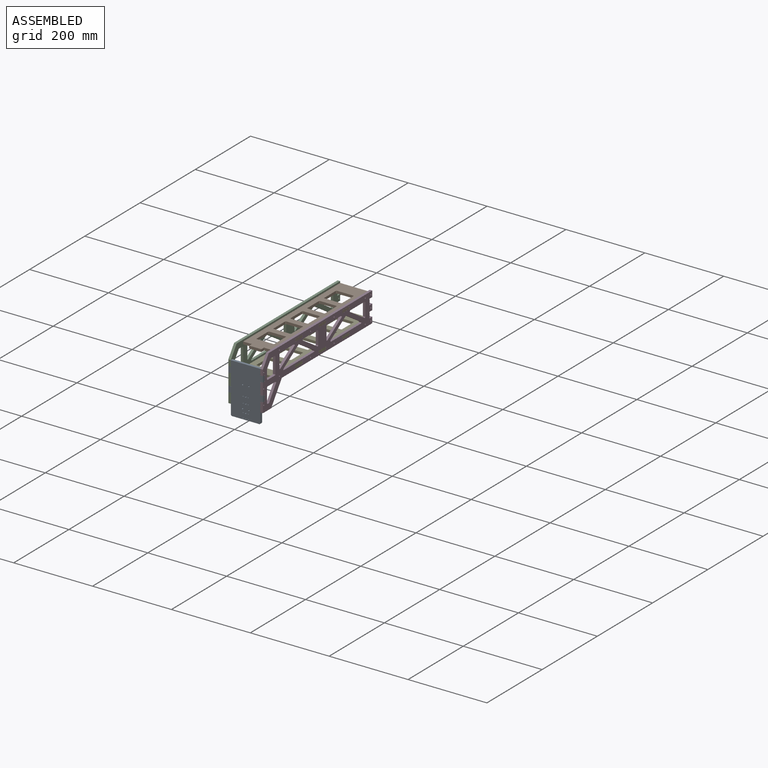
[diagram: assembled view]
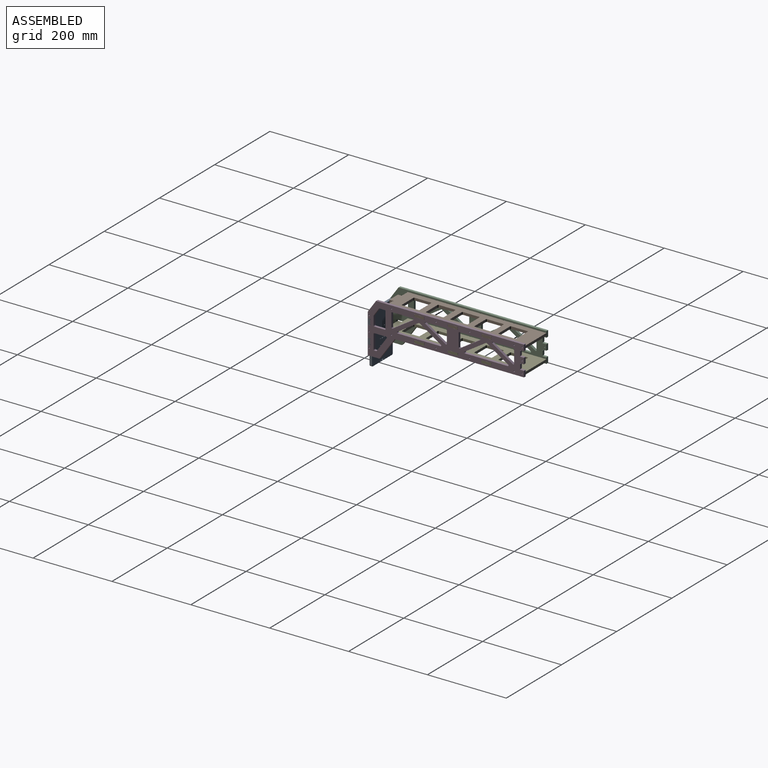
[diagram: assembled view, second angle]
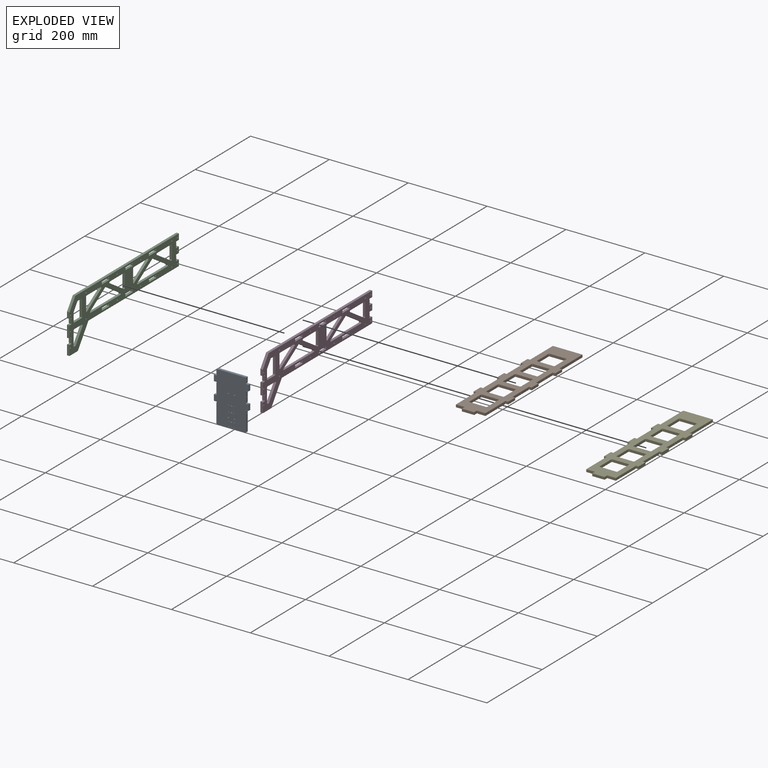
[diagram: exploded view]
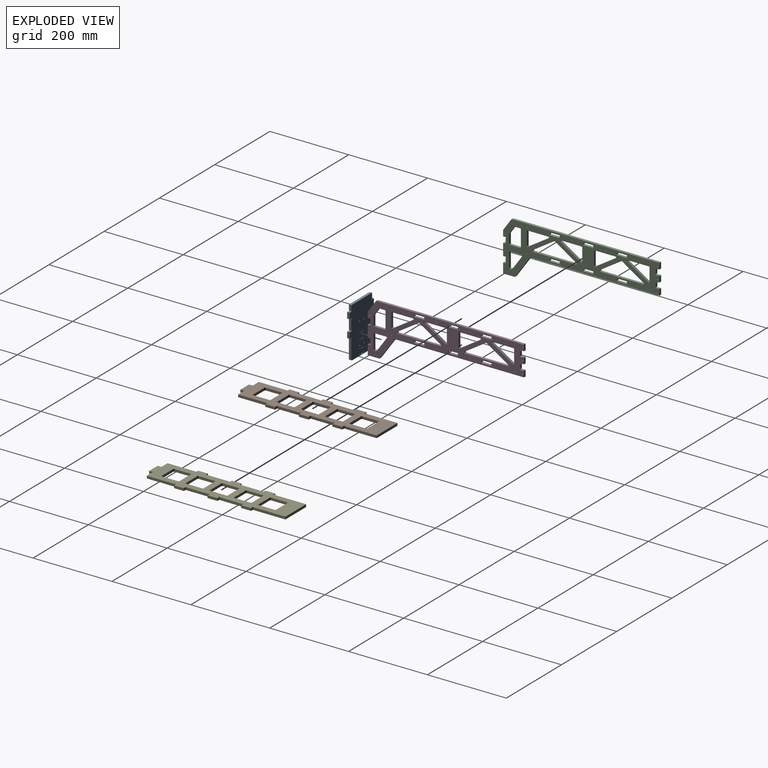
[diagram: exploded view, second angle]
ASSEMBLY  parts=5 mates=4
PART A: 70 faces, bbox 87.7x6.4x127.4 mm
  f0: cylinder r=1mm len=4.35mm, axis (0,-1,0), area 27.3mm2, adj f7,f68
  f1: plane 14.9x6.35mm, normal (1,0,0), area 94.6mm2, adj f7,f8,f18,f21
  f2: plane 14.9x6.35mm, normal (-1,0,0), area 94.6mm2, adj f7,f8,f10,f11
  f3: plane 14.9x6.35mm, normal (-1,0,0), area 94.6mm2, adj f7,f8,f12,f14
  f4: plane 71x6.35mm, normal (0,0,-1), area 450.9mm2, adj f7,f8,f60,f61
  f5: plane 14.9x6.35mm, normal (1,0,0), area 94.6mm2, adj f7,f8,f16,f19
  f6: plane 75x6.35mm, normal (0,0,1), area 476.3mm2, adj f7,f8,f9,f22
  f7: plane 127.4x87.7mm, normal (0,-1,0), area 9826.5mm2, adj f0,f1,f2,f3,f4,f5,f6,f9
  f8: plane 127.4x87.7mm, normal (0,1,0), area 9810mm2, adj f1,f2,f3,f4,f5,f6,f9,f10
  f9: plane 13.05x6.35mm, normal (-1,0,0), area 78mm2, adj f6,f7,f8,f23,f34
  f10: plane 6.35x6.35mm, normal (0,0,1), area 40.3mm2, adj f2,f7,f8,f23
  f11: plane 6.35x6.35mm, normal (0,0,-1), area 40.3mm2, adj f2,f7,f8,f24
  f12: plane 6.35x6.35mm, normal (0,0,1), area 40.3mm2, adj f3,f7,f8,f25
  f13: plane 26.1x6.35mm, normal (-1,0,0), area 160.8mm2, adj f7,f8,f24,f25,f36
  f14: plane 6.35x6.35mm, normal (0,0,-1), area 40.3mm2, adj f3,f7,f8,f26
  f15: plane 48.45x6.35mm, normal (-1,0,0), area 302.7mm2, adj f7,f8,f26,f32,f61
  f16: plane 6.35x6.35mm, normal (0,0,-1), area 40.3mm2, adj f5,f7,f8,f27
  f17: plane 48.45x6.35mm, normal (1,0,0), area 302.7mm2, adj f7,f8,f27,f38,f60
  f18: plane 6.35x6.35mm, normal (0,0,-1), area 40.3mm2, adj f1,f7,f8,f29
  f19: plane 6.35x6.35mm, normal (0,0,1), area 40.3mm2, adj f5,f7,f8,f28
  f20: plane 26.1x6.35mm, normal (1,0,0), area 160.8mm2, adj f7,f8,f28,f29,f40
  f21: plane 6.35x6.35mm, normal (0,0,1), area 40.3mm2, adj f1,f7,f8,f30
  f22: plane 13.05x6.35mm, normal (1,0,0), area 78mm2, adj f6,f7,f8,f30,f42
  f23: cylinder r=1mm len=6.35mm, axis (0,-1,0), area 19.9mm2, adj f7,f8,f9,f10
  f24: cylinder r=1mm len=6.35mm, axis (0,-1,0), area 19.9mm2, adj f7,f8,f11,f13
  f25: cylinder r=1mm len=6.35mm, axis (0,-1,0), area 19.9mm2, adj f7,f8,f12,f13
  f26: cylinder r=1mm len=6.35mm, axis (0,-1,0), area 19.9mm2, adj f7,f8,f14,f15
  f27: cylinder r=1mm len=6.35mm, axis (0,-1,0), area 19.9mm2, adj f7,f8,f16,f17
  f28: cylinder r=1mm len=6.35mm, axis (0,-1,0), area 19.9mm2, adj f7,f8,f19,f20
  f29: cylinder r=1mm len=6.35mm, axis (0,-1,0), area 19.9mm2, adj f7,f8,f18,f20
  f30: cylinder r=1mm len=6.35mm, axis (0,-1,0), area 19.9mm2, adj f7,f8,f21,f22
  f31: cone r=1.25mm half-angle=59deg, axis (-1,0,0), area 5.7mm2, adj f32
  f32: cylinder r=1.25mm len=8.5mm, axis (-1,0,0), area 66.8mm2, adj f15,f31
  f33: cone r=1.25mm half-angle=59deg, axis (-1,0,0), area 5.7mm2, adj f34
  f34: cylinder r=1.25mm len=8.5mm, axis (-1,0,0), area 66.8mm2, adj f9,f33
  f35: cone r=1.25mm half-angle=59deg, axis (-1,0,0), area 5.7mm2, adj f36
  f36: cylinder r=1.25mm len=8.5mm, axis (-1,0,0), area 66.8mm2, adj f13,f35
  f37: cone r=1.25mm half-angle=59deg, axis (1,0,0), area 5.7mm2, adj f38
  f38: cylinder r=1.25mm len=8.5mm, axis (1,0,0), area 66.8mm2, adj f17,f37
  f39: cone r=1.25mm half-angle=59deg, axis (1,0,0), area 5.7mm2, adj f40
  f40: cylinder r=1.25mm len=8.5mm, axis (1,0,0), area 66.8mm2, adj f20,f39
  f41: cone r=1.25mm half-angle=59deg, axis (1,0,0), area 5.7mm2, adj f42
  f42: cylinder r=1.25mm len=8.5mm, axis (1,0,0), area 66.8mm2, adj f22,f41
  f43: cylinder r=1.05mm len=6.35mm, axis (0,-1,0), area 41.9mm2, adj f7,f8
  f44: cylinder r=1.05mm len=6.35mm, axis (0,-1,0), area 41.9mm2, adj f7,f8
  f45: cylinder r=1.05mm len=6.35mm, axis (0,-1,0), area 41.9mm2, adj f7,f8
  f46: cylinder r=1.05mm len=6.35mm, axis (0,-1,0), area 41.9mm2, adj f7,f8
  f47: cylinder r=1.05mm len=6.35mm, axis (0,-1,0), area 41.9mm2, adj f7,f8
  f48: cylinder r=1.05mm len=6.35mm, axis (0,-1,0), area 41.9mm2, adj f7,f8
  f49: cylinder r=1.05mm len=6.35mm, axis (0,-1,0), area 41.9mm2, adj f7,f8
  f50: cylinder r=1.05mm len=6.35mm, axis (0,-1,0), area 41.9mm2, adj f7,f8
  f51: cylinder r=1.65mm len=6.35mm, axis (0,-1,0), area 65.8mm2, adj f7,f8
  f52: cylinder r=0.47mm len=6.35mm, axis (0,-1,0), area 19mm2, adj f7,f8
  f53: cylinder r=0.47mm len=6.35mm, axis (0,-1,0), area 19mm2, adj f7,f8
  f54: cylinder r=0.47mm len=6.35mm, axis (0,-1,0), area 19mm2, adj f7,f8
  f55: cylinder r=0.47mm len=6.35mm, axis (0,-1,0), area 19mm2, adj f7,f8
  f56: cylinder r=0.47mm len=6.35mm, axis (0,-1,0), area 19mm2, adj f7,f8
  f57: cylinder r=0.47mm len=6.35mm, axis (0,-1,0), area 19mm2, adj f7,f8
  f58: cylinder r=0.47mm len=6.35mm, axis (0,-1,0), area 19mm2, adj f7,f8
  f59: cylinder r=0.47mm len=6.35mm, axis (0,-1,0), area 19mm2, adj f7,f8
  f60: plane 6.35x2mm, normal (0.71,0,-0.71), area 18mm2, adj f4,f7,f8,f17
  f61: plane 6.35x2mm, normal (-0.71,0,-0.71), area 18mm2, adj f4,f7,f8,f15
  f62: cylinder r=1.55mm len=6.35mm, axis (0,-1,0), area 61.8mm2, adj f7,f8
  f63: cylinder r=1.55mm len=6.35mm, axis (0,-1,0), area 61.8mm2, adj f7,f8
  f64: cylinder r=1.55mm len=6.35mm, axis (0,-1,0), area 61.8mm2, adj f7,f8
  f65: cylinder r=1.55mm len=6.35mm, axis (0,-1,0), area 61.8mm2, adj f7,f8
  f66: cylinder r=1.55mm len=6.35mm, axis (0,-1,0), area 61.8mm2, adj f7,f8
  f67: cylinder r=1.55mm len=6.35mm, axis (0,-1,0), area 61.8mm2, adj f7,f8
  f68: plane 5x5mm, normal (0,1,0), area 16.5mm2, adj f0,f69
  f69: cylinder r=2.5mm len=5mm, axis (0,1,0), area 31.4mm2, adj f8,f68
PART B: 104 faces, bbox 361x6.4x87.7 mm
  f0: plane 31x6.35mm, normal (-1,0,0), area 196.8mm2, adj f28,f29,f71,f72
  f1: plane 71.23x6.35mm, normal (0,0,-1), area 447.4mm2, adj f28,f29,f73,f85,f93
  f2: plane 6.35x6.35mm, normal (-1,0,0), area 40.3mm2, adj f3,f28,f29,f85
  f3: plane 25x6.35mm, normal (0,0,-1), area 158.8mm2, adj f2,f4,f28,f29
  f4: plane 6.35x6.35mm, normal (1,0,0), area 40.3mm2, adj f3,f28,f29,f84
  f5: plane 56.25x6.35mm, normal (0,0,-1), area 352.3mm2, adj f28,f29,f83,f84,f95
  f6: plane 6.35x6.35mm, normal (-1,0,0), area 40.3mm2, adj f7,f28,f29,f83
  f7: plane 25x6.35mm, normal (0,0,-1), area 158.8mm2, adj f6,f8,f28,f29
  f8: plane 6.35x6.35mm, normal (1,0,0), area 40.3mm2, adj f7,f28,f29,f82
  f9: plane 56.25x6.35mm, normal (0,0,-1), area 352.3mm2, adj f28,f29,f81,f82,f89
  f10: plane 6.35x6.35mm, normal (-1,0,0), area 40.3mm2, adj f11,f28,f29,f81
  f11: plane 25x6.35mm, normal (0,0,-1), area 158.8mm2, adj f10,f12,f28,f29
  f12: plane 6.35x6.35mm, normal (1,0,0), area 40.3mm2, adj f11,f28,f29,f80
  f13: plane 80.75x6.35mm, normal (0,0,-1), area 507.9mm2, adj f14,f28,f29,f80,f91
  f14: plane 75x6.35mm, normal (1,0,0), area 476.2mm2, adj f13,f15,f28,f29
  f15: plane 80.75x6.35mm, normal (0,0,1), area 507.9mm2, adj f14,f28,f29,f79,f97
  f16: plane 6.35x6.35mm, normal (1,0,0), area 40.3mm2, adj f17,f28,f29,f79
  f17: plane 25x6.35mm, normal (0,0,1), area 158.8mm2, adj f16,f18,f28,f29
  f18: plane 6.35x6.35mm, normal (-1,0,0), area 40.3mm2, adj f17,f28,f29,f78
  f19: plane 56.25x6.35mm, normal (0,0,1), area 352.3mm2, adj f28,f29,f77,f78,f99
  f20: plane 6.35x6.35mm, normal (1,0,0), area 40.3mm2, adj f21,f28,f29,f77
  f21: plane 25x6.35mm, normal (0,0,1), area 158.8mm2, adj f20,f22,f28,f29
  f22: plane 6.35x6.35mm, normal (-1,0,0), area 40.3mm2, adj f21,f28,f29,f76
  f23: plane 56.25x6.35mm, normal (0,0,1), area 352.3mm2, adj f28,f29,f75,f76,f101
  f24: plane 6.35x6.35mm, normal (1,0,0), area 40.3mm2, adj f25,f28,f29,f75
  f25: plane 25x6.35mm, normal (0,0,1), area 158.8mm2, adj f24,f26,f28,f29
  f26: plane 6.35x6.35mm, normal (-1,0,0), area 40.3mm2, adj f25,f28,f29,f74
  f27: plane 71.23x6.35mm, normal (0,0,1), area 447.4mm2, adj f28,f29,f70,f74,f103
  f28: plane 361x87.7mm, normal (0,-1,0), area 17478.6mm2, adj f0,f1,f2,f3,f4,f5,f6,f7
  f29: plane 361x87.7mm, normal (0,1,0), area 17478.6mm2, adj f0,f1,f2,f3,f4,f5,f6,f7
  f30: plane 41x6.35mm, normal (1,0,0), area 260.3mm2, adj f28,f29,f50,f51
  f31: plane 41x6.35mm, normal (0,0,-1), area 260.3mm2, adj f28,f29,f50,f53
  f32: plane 41x6.35mm, normal (-1,0,0), area 260.3mm2, adj f28,f29,f52,f53
  f33: plane 41x6.35mm, normal (0,0,1), area 260.3mm2, adj f28,f29,f51,f52
  f34: plane 41x6.35mm, normal (1,0,0), area 260.3mm2, adj f28,f29,f54,f55
  f35: plane 41x6.35mm, normal (0,0,-1), area 260.4mm2, adj f28,f29,f54,f57
  f36: plane 41x6.35mm, normal (-1,0,0), area 260.3mm2, adj f28,f29,f56,f57
  f37: plane 41x6.35mm, normal (0,0,1), area 260.4mm2, adj f28,f29,f55,f56
  f38: plane 41x6.35mm, normal (1,0,0), area 260.3mm2, adj f28,f29,f58,f59
  f39: plane 41x6.35mm, normal (0,0,-1), area 260.3mm2, adj f28,f29,f58,f61
  f40: plane 41x6.35mm, normal (-1,0,0), area 260.3mm2, adj f28,f29,f60,f61
  f41: plane 41x6.35mm, normal (0,0,1), area 260.3mm2, adj f28,f29,f59,f60
  f42: plane 41x6.35mm, normal (1,0,0), area 260.3mm2, adj f28,f29,f62,f63
  f43: plane 41x6.35mm, normal (0,0,-1), area 260.4mm2, adj f28,f29,f62,f65
  f44: plane 41x6.35mm, normal (-1,0,0), area 260.3mm2, adj f28,f29,f64,f65
  f45: plane 41x6.35mm, normal (0,0,1), area 260.4mm2, adj f28,f29,f63,f64
  f46: plane 41x6.35mm, normal (1,0,0), area 260.3mm2, adj f28,f29,f66,f67
  f47: plane 41x6.35mm, normal (0,0,-1), area 260.3mm2, adj f28,f29,f66,f69
  f48: plane 41x6.35mm, normal (-1,0,0), area 260.3mm2, adj f28,f29,f68,f69
  f49: plane 41x6.35mm, normal (0,0,1), area 260.3mm2, adj f28,f29,f67,f68
  f50: cylinder r=2mm len=6.35mm, axis (0,1,0), area 19.9mm2, adj f28,f29,f30,f31
  f51: cylinder r=2mm len=6.35mm, axis (0,1,0), area 19.9mm2, adj f28,f29,f30,f33
  f52: cylinder r=2mm len=6.35mm, axis (0,1,0), area 19.9mm2, adj f28,f29,f32,f33
  f53: cylinder r=2mm len=6.35mm, axis (0,1,0), area 19.9mm2, adj f28,f29,f31,f32
  f54: cylinder r=2mm len=6.35mm, axis (0,1,0), area 19.9mm2, adj f28,f29,f34,f35
  f55: cylinder r=2mm len=6.35mm, axis (0,1,0), area 19.9mm2, adj f28,f29,f34,f37
  f56: cylinder r=2mm len=6.35mm, axis (0,1,0), area 19.9mm2, adj f28,f29,f36,f37
  f57: cylinder r=2mm len=6.35mm, axis (0,1,0), area 19.9mm2, adj f28,f29,f35,f36
  f58: cylinder r=2mm len=6.35mm, axis (0,1,0), area 19.9mm2, adj f28,f29,f38,f39
  f59: cylinder r=2mm len=6.35mm, axis (0,1,0), area 19.9mm2, adj f28,f29,f38,f41
  f60: cylinder r=2mm len=6.35mm, axis (0,1,0), area 19.9mm2, adj f28,f29,f40,f41
  f61: cylinder r=2mm len=6.35mm, axis (0,1,0), area 19.9mm2, adj f28,f29,f39,f40
  f62: cylinder r=2mm len=6.35mm, axis (0,1,0), area 19.9mm2, adj f28,f29,f42,f43
  f63: cylinder r=2mm len=6.35mm, axis (0,1,0), area 19.9mm2, adj f28,f29,f42,f45
  f64: cylinder r=2mm len=6.35mm, axis (0,1,0), area 19.9mm2, adj f28,f29,f44,f45
  f65: cylinder r=2mm len=6.35mm, axis (0,1,0), area 19.9mm2, adj f28,f29,f43,f44
  f66: cylinder r=2mm len=6.35mm, axis (0,1,0), area 19.9mm2, adj f28,f29,f46,f47
  f67: cylinder r=2mm len=6.35mm, axis (0,1,0), area 19.9mm2, adj f28,f29,f46,f49
  f68: cylinder r=2mm len=6.35mm, axis (0,1,0), area 19.9mm2, adj f28,f29,f48,f49
  f69: cylinder r=2mm len=6.35mm, axis (0,1,0), area 19.9mm2, adj f28,f29,f47,f48
  f70: plane 20x6.35mm, normal (-1,0,0), area 127mm2, adj f27,f28,f29,f86
  f71: plane 9.53x6.35mm, normal (0,0,1), area 60.5mm2, adj f0,f28,f29,f86
  f72: plane 9.53x6.35mm, normal (0,0,-1), area 60.5mm2, adj f0,f28,f29,f87
  f73: plane 20x6.35mm, normal (-1,0,0), area 127mm2, adj f1,f28,f29,f87
  f74: cylinder r=1mm len=6.35mm, axis (0,-1,0), area 19.9mm2, adj f26,f27,f28,f29
  f75: cylinder r=1mm len=6.35mm, axis (0,-1,0), area 19.9mm2, adj f23,f24,f28,f29
  f76: cylinder r=1mm len=6.35mm, axis (0,-1,0), area 19.9mm2, adj f22,f23,f28,f29
  f77: cylinder r=1mm len=6.35mm, axis (0,-1,0), area 19.9mm2, adj f19,f20,f28,f29
  f78: cylinder r=1mm len=6.35mm, axis (0,-1,0), area 19.9mm2, adj f18,f19,f28,f29
  f79: cylinder r=1mm len=6.35mm, axis (0,-1,0), area 19.9mm2, adj f15,f16,f28,f29
  f80: cylinder r=1mm len=6.35mm, axis (0,-1,0), area 19.9mm2, adj f12,f13,f28,f29
  f81: cylinder r=1mm len=6.35mm, axis (0,-1,0), area 19.9mm2, adj f9,f10,f28,f29
  f82: cylinder r=1mm len=6.35mm, axis (0,-1,0), area 19.9mm2, adj f8,f9,f28,f29
  f83: cylinder r=1mm len=6.35mm, axis (0,-1,0), area 19.9mm2, adj f5,f6,f28,f29
  f84: cylinder r=1mm len=6.35mm, axis (0,-1,0), area 19.9mm2, adj f4,f5,f28,f29
  f85: cylinder r=1mm len=6.35mm, axis (0,-1,0), area 19.9mm2, adj f1,f2,f28,f29
  f86: cylinder r=1mm len=6.35mm, axis (0,-1,0), area 19.9mm2, adj f28,f29,f70,f71
  f87: cylinder r=1mm len=6.35mm, axis (0,-1,0), area 19.9mm2, adj f28,f29,f72,f73
  f88: cone r=1.25mm half-angle=59deg, axis (0,0,-1), area 5.7mm2, adj f89
  f89: cylinder r=1.25mm len=8.5mm, axis (0,0,-1), area 66.8mm2, adj f9,f88
  f90: cone r=1.25mm half-angle=59deg, axis (0,0,-1), area 5.7mm2, adj f91
  f91: cylinder r=1.25mm len=8.5mm, axis (0,0,-1), area 66.8mm2, adj f13,f90
  f92: cone r=1.25mm half-angle=59deg, axis (0,0,-1), area 5.7mm2, adj f93
  f93: cylinder r=1.25mm len=8.5mm, axis (0,0,-1), area 66.8mm2, adj f1,f92
  f94: cone r=1.25mm half-angle=59deg, axis (0,0,-1), area 5.7mm2, adj f95
  f95: cylinder r=1.25mm len=8.5mm, axis (0,0,-1), area 66.8mm2, adj f5,f94
  f96: cone r=1.25mm half-angle=59deg, axis (0,0,1), area 5.7mm2, adj f97
  f97: cylinder r=1.25mm len=8.5mm, axis (0,0,1), area 66.8mm2, adj f15,f96
  f98: cone r=1.25mm half-angle=59deg, axis (0,0,1), area 5.7mm2, adj f99
  f99: cylinder r=1.25mm len=8.5mm, axis (0,0,1), area 66.8mm2, adj f19,f98
  f100: cone r=1.25mm half-angle=59deg, axis (0,0,1), area 5.7mm2, adj f101
  f101: cylinder r=1.25mm len=8.5mm, axis (0,0,1), area 66.8mm2, adj f23,f100
  f102: cone r=1.25mm half-angle=59deg, axis (0,0,1), area 5.7mm2, adj f103
  f103: cylinder r=1.25mm len=8.5mm, axis (0,0,1), area 66.8mm2, adj f27,f102
PART C: 151 faces, bbox 396x6.4x130 mm
  f0: plane 25x6.35mm, normal (1,0,0), area 158.7mm2, adj f8,f11,f12,f102
  f1: plane 30x6.35mm, normal (1,0,0), area 190.5mm2, adj f11,f12,f99,f104
  f2: plane 15x6.35mm, normal (-1,0,0), area 95.3mm2, adj f6,f11,f12,f96
  f3: plane 15x6.35mm, normal (-1,0,0), area 95.2mm2, adj f4,f11,f12,f93
  f4: plane 374.99x6.35mm, normal (0,0,1), area 2381.2mm2, adj f3,f10,f11,f12
  f5: plane 15x6.35mm, normal (-1,0,0), area 95.2mm2, adj f11,f12,f95,f97
  f6: plane 326.45x6.35mm, normal (0,0,-1), area 2072.9mm2, adj f2,f11,f12,f41
  f7: plane 53.29x37.32mm, normal (-0.82,0,-0.57), area 413.1mm2, adj f11,f12,f40,f41
  f8: plane 28.96x6.35mm, normal (0,0,-1), area 183.9mm2, adj f0,f11,f12,f40
  f9: plane 15x6.35mm, normal (1,0,0), area 95.2mm2, adj f10,f11,f12,f101
  f10: plane 30x21.01mm, normal (0.82,0,0.57), area 232.6mm2, adj f4,f9,f11,f12
  f11: plane 396x130mm, normal (0,-1,0), area 18986.1mm2, adj f0,f1,f2,f3,f4,f5,f6,f7
  f12: plane 396x130mm, normal (0,1,0), area 18986.1mm2, adj f0,f1,f2,f3,f4,f5,f6,f7
  f13: plane 33.41x6.35mm, normal (1,0,0), area 212.1mm2, adj f11,f12,f67,f68
  f14: plane 52.15x6.35mm, normal (0,0,-1), area 331.2mm2, adj f11,f12,f66,f68
  f15: plane 52.15x33.41mm, normal (-0.54,0,0.84), area 393.3mm2, adj f11,f12,f66,f67
  f16: plane 54.15x34.69mm, normal (-0.54,0,-0.84), area 408.4mm2, adj f11,f12,f64,f65
  f17: plane 108.3x6.35mm, normal (0,0,1), area 687.7mm2, adj f11,f12,f63,f64
  f18: plane 54.15x34.69mm, normal (0.54,0,-0.84), area 408.4mm2, adj f11,f12,f63,f65
  f19: plane 52.15x6.35mm, normal (0,0,-1), area 331.2mm2, adj f11,f12,f61,f62
  f20: plane 33.41x6.35mm, normal (-1,0,0), area 212.1mm2, adj f11,f12,f60,f61
  f21: plane 52.15x33.41mm, normal (0.54,0,0.84), area 393.3mm2, adj f11,f12,f60,f62
  f22: plane 13.14x6.35mm, normal (0,0,-1), area 83.5mm2, adj f11,f12,f45,f46
  f23: plane 18.36x12.86mm, normal (-0.82,0,-0.57), area 142.3mm2, adj f11,f12,f44,f45
  f24: plane 22.64x6.35mm, normal (-1,0,0), area 143.8mm2, adj f11,f12,f43,f44
  f25: plane 26x6.35mm, normal (0,0,1), area 165.1mm2, adj f11,f12,f42,f43
  f26: plane 41x6.35mm, normal (1,0,0), area 260.4mm2, adj f11,f12,f42,f46
  f27: plane 29.36x6.35mm, normal (0,0,-1), area 186.4mm2, adj f11,f12,f47,f50
  f28: plane 36x6.35mm, normal (-1,0,0), area 228.6mm2, adj f11,f12,f47,f48
  f29: plane 6.35x4.15mm, normal (0,0,1), area 26.4mm2, adj f11,f12,f48,f49
  f30: plane 36x25.21mm, normal (0.82,0,0.57), area 279.1mm2, adj f11,f12,f49,f50
  f31: plane 33.41x6.35mm, normal (1,0,0), area 212.1mm2, adj f11,f12,f58,f59
  f32: plane 52.15x6.35mm, normal (0,0,-1), area 331.2mm2, adj f11,f12,f57,f58
  f33: plane 52.15x33.41mm, normal (-0.54,0,0.84), area 393.3mm2, adj f11,f12,f57,f59
  f34: plane 54.15x34.69mm, normal (-0.54,0,-0.84), area 408.4mm2, adj f11,f12,f53,f55
  f35: plane 108.3x6.35mm, normal (0,0,1), area 687.7mm2, adj f11,f12,f53,f56
  f36: plane 54.15x34.69mm, normal (0.54,0,-0.84), area 408.4mm2, adj f11,f12,f55,f56
  f37: plane 52.15x6.35mm, normal (0,0,-1), area 331.2mm2, adj f11,f12,f51,f54
  f38: plane 33.41x6.35mm, normal (-1,0,0), area 212.1mm2, adj f11,f12,f51,f52
  f39: plane 52.15x33.41mm, normal (0.54,0,0.84), area 393.3mm2, adj f11,f12,f52,f54
  f40: cylinder r=2mm len=6.35mm, axis (0,1,0), area 12.2mm2, adj f7,f8,f11,f12
  f41: cylinder r=2mm len=6.35mm, axis (0,-1,0), area 12.2mm2, adj f6,f7,f11,f12
  f42: cylinder r=2mm len=6.35mm, axis (0,1,0), area 19.9mm2, adj f11,f12,f25,f26
  f43: cylinder r=2mm len=6.35mm, axis (0,1,0), area 19.9mm2, adj f11,f12,f24,f25
  f44: cylinder r=2mm len=6.35mm, axis (0,1,0), area 7.8mm2, adj f11,f12,f23,f24
  f45: cylinder r=2mm len=6.35mm, axis (0,1,0), area 12.2mm2, adj f11,f12,f22,f23
  f46: cylinder r=2mm len=6.35mm, axis (0,1,0), area 19.9mm2, adj f11,f12,f22,f26
  f47: cylinder r=2mm len=6.35mm, axis (0,1,0), area 19.9mm2, adj f11,f12,f27,f28
  f48: cylinder r=2mm len=6.35mm, axis (0,1,0), area 19.9mm2, adj f11,f12,f28,f29
  f49: cylinder r=2mm len=6.35mm, axis (0,1,0), area 12.2mm2, adj f11,f12,f29,f30
  f50: cylinder r=2mm len=6.35mm, axis (0,1,0), area 27.7mm2, adj f11,f12,f27,f30
  f51: cylinder r=2mm len=6.35mm, axis (0,1,0), area 19.9mm2, adj f11,f12,f37,f38
  f52: cylinder r=2mm len=6.35mm, axis (0,1,0), area 27.2mm2, adj f11,f12,f38,f39
  f53: cylinder r=2mm len=6.35mm, axis (0,1,0), area 32.7mm2, adj f11,f12,f34,f35
  f54: cylinder r=2mm len=6.35mm, axis (0,1,0), area 32.7mm2, adj f11,f12,f37,f39
  f55: cylinder r=2mm len=6.35mm, axis (0,1,0), area 14.5mm2, adj f11,f12,f34,f36
  f56: cylinder r=2mm len=6.35mm, axis (0,1,0), area 32.7mm2, adj f11,f12,f35,f36
  f57: cylinder r=2mm len=6.35mm, axis (0,1,0), area 32.7mm2, adj f11,f12,f32,f33
  f58: cylinder r=2mm len=6.35mm, axis (0,1,0), area 19.9mm2, adj f11,f12,f31,f32
  f59: cylinder r=2mm len=6.35mm, axis (0,1,0), area 27.2mm2, adj f11,f12,f31,f33
  f60: cylinder r=2mm len=6.35mm, axis (0,1,0), area 27.2mm2, adj f11,f12,f20,f21
  f61: cylinder r=2mm len=6.35mm, axis (0,1,0), area 19.9mm2, adj f11,f12,f19,f20
  f62: cylinder r=2mm len=6.35mm, axis (0,1,0), area 32.7mm2, adj f11,f12,f19,f21
  f63: cylinder r=2mm len=6.35mm, axis (0,1,0), area 32.7mm2, adj f11,f12,f17,f18
  f64: cylinder r=2mm len=6.35mm, axis (0,1,0), area 32.7mm2, adj f11,f12,f16,f17
  f65: cylinder r=2mm len=6.35mm, axis (0,1,0), area 14.5mm2, adj f11,f12,f16,f18
  f66: cylinder r=2mm len=6.35mm, axis (0,1,0), area 32.7mm2, adj f11,f12,f14,f15
  f67: cylinder r=2mm len=6.35mm, axis (0,1,0), area 27.2mm2, adj f11,f12,f13,f15
  f68: cylinder r=2mm len=6.35mm, axis (0,1,0), area 19.9mm2, adj f11,f12,f13,f14
  f69: plane 6.35x2.45mm, normal (-1,0,0), area 15.6mm2, adj f11,f12,f107,f108
  f70: plane 25.1x6.35mm, normal (0,0,1), area 159.4mm2, adj f11,f12,f106,f107
  f71: plane 6.35x2.45mm, normal (1,0,0), area 15.6mm2, adj f11,f12,f105,f106
  f72: plane 25.1x6.35mm, normal (0,0,-1), area 159.4mm2, adj f11,f12,f105,f108
  f73: plane 6.35x2.45mm, normal (-1,0,0), area 15.6mm2, adj f11,f12,f113,f114
  f74: plane 25.1x6.35mm, normal (0,0,1), area 159.4mm2, adj f11,f12,f112,f113
  f75: plane 6.35x2.45mm, normal (1,0,0), area 15.6mm2, adj f11,f12,f111,f112
  f76: plane 25.1x6.35mm, normal (0,0,-1), area 159.4mm2, adj f11,f12,f111,f114
  f77: plane 6.35x2.45mm, normal (-1,0,0), area 15.6mm2, adj f11,f12,f117,f118
  f78: plane 25.1x6.35mm, normal (0,0,1), area 159.4mm2, adj f11,f12,f116,f117
  f79: plane 6.35x2.45mm, normal (1,0,0), area 15.6mm2, adj f11,f12,f115,f116
  f80: plane 25.1x6.35mm, normal (0,0,-1), area 159.4mm2, adj f11,f12,f115,f118
  f81: plane 6.35x2.45mm, normal (-1,0,0), area 15.6mm2, adj f11,f12,f131,f132
  f82: plane 25.1x6.35mm, normal (0,0,1), area 159.4mm2, adj f11,f12,f130,f131
  f83: plane 6.35x2.45mm, normal (1,0,0), area 15.6mm2, adj f11,f12,f129,f130
  f84: plane 25.1x6.35mm, normal (0,0,-1), area 159.4mm2, adj f11,f12,f129,f132
  f85: plane 6.35x2.45mm, normal (-1,0,0), area 15.6mm2, adj f11,f12,f123,f124
  f86: plane 25.1x6.35mm, normal (0,0,1), area 159.4mm2, adj f11,f12,f122,f123
  f87: plane 6.35x2.45mm, normal (1,0,0), area 15.6mm2, adj f11,f12,f121,f122
  f88: plane 25.1x6.35mm, normal (0,0,-1), area 159.4mm2, adj f11,f12,f121,f124
  f89: plane 6.35x2.45mm, normal (-1,0,0), area 15.6mm2, adj f11,f12,f127,f128
  f90: plane 25.1x6.35mm, normal (0,0,1), area 159.4mm2, adj f11,f12,f126,f127
  f91: plane 6.35x2.45mm, normal (1,0,0), area 15.6mm2, adj f11,f12,f125,f126
  f92: plane 25.1x6.35mm, normal (0,0,-1), area 159.4mm2, adj f11,f12,f125,f128
  f93: plane 9.53x6.35mm, normal (0,0,-1), area 60.5mm2, adj f3,f11,f12,f133
  f94: plane 11x6.35mm, normal (-1,0,0), area 69.9mm2, adj f11,f12,f133,f134
  f95: plane 9.53x6.35mm, normal (0,0,1), area 60.5mm2, adj f5,f11,f12,f134
  f96: plane 9.53x6.35mm, normal (0,0,1), area 60.5mm2, adj f2,f11,f12,f136
  f97: plane 9.53x6.35mm, normal (0,0,-1), area 60.5mm2, adj f5,f11,f12,f135
  f98: plane 11x6.35mm, normal (-1,0,0), area 69.9mm2, adj f11,f12,f135,f136
  f99: plane 6.35x6.35mm, normal (0,0,1), area 40.3mm2, adj f1,f11,f12,f110
  f100: plane 11x6.35mm, normal (1,0,0), area 69.9mm2, adj f11,f12,f109,f110
  f101: plane 6.35x6.35mm, normal (0,0,-1), area 40.3mm2, adj f9,f11,f12,f109
  f102: plane 6.35x6.35mm, normal (0,0,1), area 40.3mm2, adj f0,f11,f12,f120
  f103: plane 11x6.35mm, normal (1,0,0), area 69.8mm2, adj f11,f12,f119,f120
  f104: plane 6.35x6.35mm, normal (0,0,-1), area 40.3mm2, adj f1,f11,f12,f119
  f105: cylinder r=1mm len=6.35mm, axis (0,-1,0), area 19.9mm2, adj f11,f12,f71,f72
  f106: cylinder r=1mm len=6.35mm, axis (0,-1,0), area 19.9mm2, adj f11,f12,f70,f71
  f107: cylinder r=1mm len=6.35mm, axis (0,-1,0), area 19.9mm2, adj f11,f12,f69,f70
  f108: cylinder r=1mm len=6.35mm, axis (0,-1,0), area 19.9mm2, adj f11,f12,f69,f72
  f109: cylinder r=1mm len=6.35mm, axis (0,-1,0), area 19.9mm2, adj f11,f12,f100,f101
  f110: cylinder r=1mm len=6.35mm, axis (0,-1,0), area 19.9mm2, adj f11,f12,f99,f100
  f111: cylinder r=1mm len=6.35mm, axis (0,-1,0), area 19.9mm2, adj f11,f12,f75,f76
  f112: cylinder r=1mm len=6.35mm, axis (0,-1,0), area 19.9mm2, adj f11,f12,f74,f75
  f113: cylinder r=1mm len=6.35mm, axis (0,-1,0), area 19.9mm2, adj f11,f12,f73,f74
  f114: cylinder r=1mm len=6.35mm, axis (0,-1,0), area 19.9mm2, adj f11,f12,f73,f76
  f115: cylinder r=1mm len=6.35mm, axis (0,-1,0), area 19.9mm2, adj f11,f12,f79,f80
  f116: cylinder r=1mm len=6.35mm, axis (0,-1,0), area 19.9mm2, adj f11,f12,f78,f79
  f117: cylinder r=1mm len=6.35mm, axis (0,-1,0), area 19.9mm2, adj f11,f12,f77,f78
  f118: cylinder r=1mm len=6.35mm, axis (0,-1,0), area 19.9mm2, adj f11,f12,f77,f80
  f119: cylinder r=1mm len=6.35mm, axis (0,-1,0), area 19.9mm2, adj f11,f12,f103,f104
  f120: cylinder r=1mm len=6.35mm, axis (0,-1,0), area 19.9mm2, adj f11,f12,f102,f103
  f121: cylinder r=1mm len=6.35mm, axis (0,-1,0), area 19.9mm2, adj f11,f12,f87,f88
  f122: cylinder r=1mm len=6.35mm, axis (0,-1,0), area 19.9mm2, adj f11,f12,f86,f87
  f123: cylinder r=1mm len=6.35mm, axis (0,-1,0), area 19.9mm2, adj f11,f12,f85,f86
  f124: cylinder r=1mm len=6.35mm, axis (0,-1,0), area 19.9mm2, adj f11,f12,f85,f88
  f125: cylinder r=1mm len=6.35mm, axis (0,-1,0), area 19.9mm2, adj f11,f12,f91,f92
  f126: cylinder r=1mm len=6.35mm, axis (0,-1,0), area 19.9mm2, adj f11,f12,f90,f91
  f127: cylinder r=1mm len=6.35mm, axis (0,-1,0), area 19.9mm2, adj f11,f12,f89,f90
  f128: cylinder r=1mm len=6.35mm, axis (0,-1,0), area 19.9mm2, adj f11,f12,f89,f92
  f129: cylinder r=1mm len=6.35mm, axis (0,-1,0), area 19.9mm2, adj f11,f12,f83,f84
  f130: cylinder r=1mm len=6.35mm, axis (0,-1,0), area 19.9mm2, adj f11,f12,f82,f83
  f131: cylinder r=1mm len=6.35mm, axis (0,-1,0), area 19.9mm2, adj f11,f12,f81,f82
  f132: cylinder r=1mm len=6.35mm, axis (0,-1,0), area 19.9mm2, adj f11,f12,f81,f84
  f133: cylinder r=1mm len=6.35mm, axis (0,-1,0), area 19.9mm2, adj f11,f12,f93,f94
  f134: cylinder r=1mm len=6.35mm, axis (0,-1,0), area 19.9mm2, adj f11,f12,f94,f95
  f135: cylinder r=1mm len=6.35mm, axis (0,-1,0), area 19.9mm2, adj f11,f12,f97,f98
  f136: cylinder r=1mm len=6.35mm, axis (0,-1,0), area 19.9mm2, adj f11,f12,f96,f98
  f137: cylinder r=1.6mm len=6.35mm, axis (0,-1,0), area 63.8mm2, adj f11,f12
  f138: cylinder r=1.6mm len=6.35mm, axis (0,-1,0), area 63.8mm2, adj f11,f12
  f139: cylinder r=1.6mm len=6.35mm, axis (0,-1,0), area 63.8mm2, adj f11,f12
  f140: cylinder r=1.6mm len=6.35mm, axis (0,-1,0), area 63.8mm2, adj f11,f12
  f141: cylinder r=1.6mm len=6.35mm, axis (0,-1,0), area 63.8mm2, adj f11,f12
  f142: cylinder r=1.6mm len=6.35mm, axis (0,-1,0), area 63.8mm2, adj f11,f12
  f143: cylinder r=1.6mm len=6.35mm, axis (0,-1,0), area 63.8mm2, adj f11,f12
  f144: cylinder r=1.6mm len=6.35mm, axis (0,-1,0), area 63.8mm2, adj f11,f12
  f145: cylinder r=1.6mm len=6.35mm, axis (0,-1,0), area 63.8mm2, adj f11,f12
  f146: cylinder r=1.6mm len=6.35mm, axis (0,-1,0), area 63.8mm2, adj f11,f12
  f147: cylinder r=1.6mm len=6.35mm, axis (0,-1,0), area 63.8mm2, adj f11,f12
  f148: cylinder r=1.6mm len=6.35mm, axis (0,-1,0), area 63.8mm2, adj f11,f12
  f149: cylinder r=1.6mm len=6.35mm, axis (0,-1,0), area 63.8mm2, adj f11,f12
  f150: cylinder r=1.6mm len=6.35mm, axis (0,-1,0), area 63.8mm2, adj f11,f12
PART D: same geometry as C
PART E: same geometry as B
PLACE A t=(0.36,45.85,76.59)mm
PLACE B rot(axis=(0.58,0.58,0.58),120deg) t=(0.36,255,102.26)mm
PLACE C rot(axis=(0,0,-1),90deg) t=(-37.14,435.5,-23.41)mm
PLACE D rot(axis=(0,0,-1),90deg) t=(44.21,435.5,-23.41)mm
PLACE E rot(axis=(0.58,0.58,0.58),120deg) t=(0.36,255,42.26)mm
MATE fastened E.f92 <-> C.f146  axis (-1,0,0) through (-37.14,99.5,39.09)mm
MATE fastened D.f139 <-> A.f33  axis (-1,0,0) through (37.86,42.67,69.09)mm
MATE fastened C.f139 <-> A.f33  axis (1,0,0) through (-37.14,42.67,69.09)mm
MATE fastened B.f92 <-> C.f147  axis (-1,0,0) through (-37.14,99.5,99.09)mm
